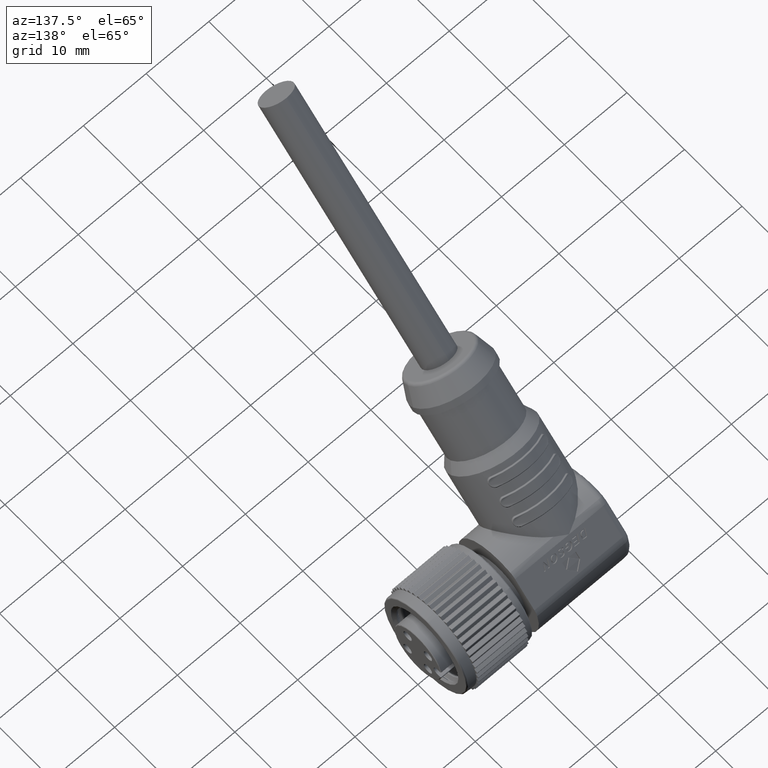
[diagram: clean part render]
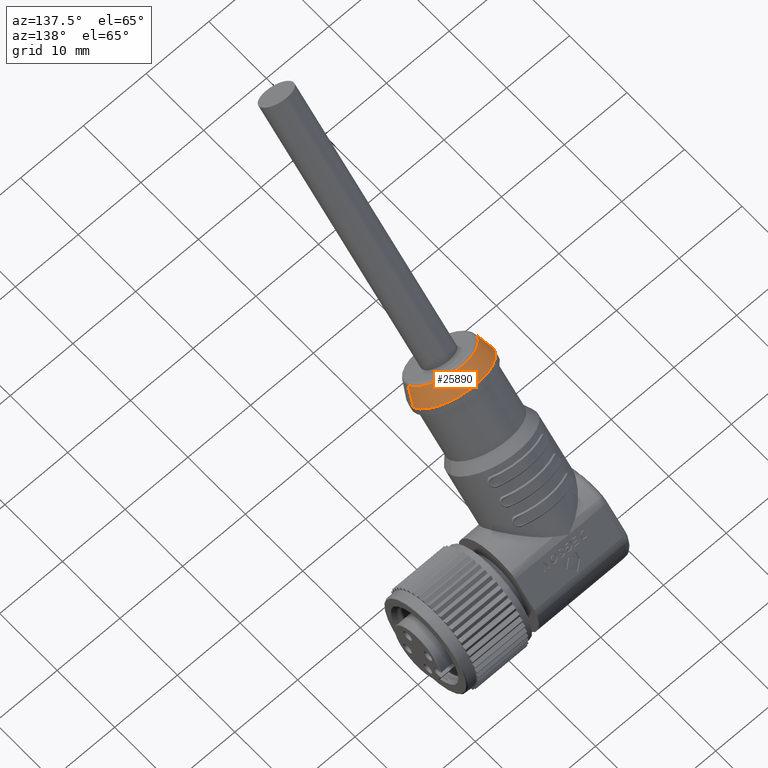
[diagram: same view with one face highlighted and labeled with its STEP entity id]
A machine part, auxiliary view. The second image highlights one B-rep face of the part: STEP entity #25890.
In plain terms, the highlighted conical surface has half-angle 18.435 deg.
Its self-contained STEP definition (entity closure, byte-faithful):
#3762=CARTESIAN_POINT('',(-2.15E1,-1.767766952966E1,1.767766952966E1));
#3763=DIRECTION('',(0.E0,7.071067811865E-1,-7.071067811865E-1));
#3764=DIRECTION('',(-1.E0,0.E0,0.E0));
#3765=AXIS2_PLACEMENT_3D('',#3762,#3763,#3764);
#3767=CARTESIAN_POINT('',(-2.15E1,-1.955723988151E1,1.955723988151E1));
#3768=DIRECTION('',(0.E0,7.071067811865E-1,-7.071067811865E-1));
#3769=DIRECTION('',(-1.E0,0.E0,0.E0));
#3770=AXIS2_PLACEMENT_3D('',#3767,#3768,#3769);
#3772=DIRECTION('',(-3.162277660168E-1,6.708203932499E-1,-6.708203932499E-1));
#3773=VECTOR('',#3772,2.801898050140E0);
#3774=CARTESIAN_POINT('',(-2.661396203900E1,-1.955723988151E1,
1.955723988151E1));
#3775=LINE('',#3774,#3773);
#3776=DIRECTION('',(3.162277660168E-1,6.708203932499E-1,-6.708203932499E-1));
#3777=VECTOR('',#3776,2.801898050140E0);
#3778=CARTESIAN_POINT('',(-1.638603796100E1,-1.955723988151E1,
1.955723988151E1));
#3779=LINE('',#3778,#3777);
#21748=CARTESIAN_POINT('',(-2.75E1,-1.767766952966E1,1.767766952966E1));
#21750=VERTEX_POINT('',#21748);
#21758=CARTESIAN_POINT('',(-1.55E1,-1.767766952966E1,1.767766952966E1));
#21760=VERTEX_POINT('',#21758);
#21780=CARTESIAN_POINT('',(-2.661396203900E1,-1.955723988151E1,
1.955723988151E1));
#21781=CARTESIAN_POINT('',(-1.638603796100E1,-1.955723988151E1,
1.955723988151E1));
#21782=VERTEX_POINT('',#21780);
#21783=VERTEX_POINT('',#21781);
#25876=CARTESIAN_POINT('',(-2.15E1,-1.861745470558E1,1.861745470558E1));
#25877=DIRECTION('',(0.E0,7.071067811865E-1,-7.071067811865E-1));
#25878=DIRECTION('',(-1.E0,0.E0,0.E0));
#25879=AXIS2_PLACEMENT_3D('',#25876,#25877,#25878);
#25880=CONICAL_SURFACE('',#25879,5.556981019499E0,1.843494882292E1);
#25882=ORIENTED_EDGE('',*,*,#25881,.F.);
#25884=ORIENTED_EDGE('',*,*,#25883,.T.);
#25885=ORIENTED_EDGE('',*,*,#25871,.T.);
#25887=ORIENTED_EDGE('',*,*,#25886,.F.);
#25888=EDGE_LOOP('',(#25882,#25884,#25885,#25887));
#25889=FACE_OUTER_BOUND('',#25888,.F.);
#25890=ADVANCED_FACE('',(#25889),#25880,.T.);
#3766=CIRCLE('',#3765,6.E0);
#3771=CIRCLE('',#3770,5.113962038997E0);
#25871=EDGE_CURVE('',#21750,#21760,#3766,.T.);
#25881=EDGE_CURVE('',#21782,#21783,#3771,.T.);
#25883=EDGE_CURVE('',#21782,#21750,#3775,.T.);
#25886=EDGE_CURVE('',#21783,#21760,#3779,.T.);